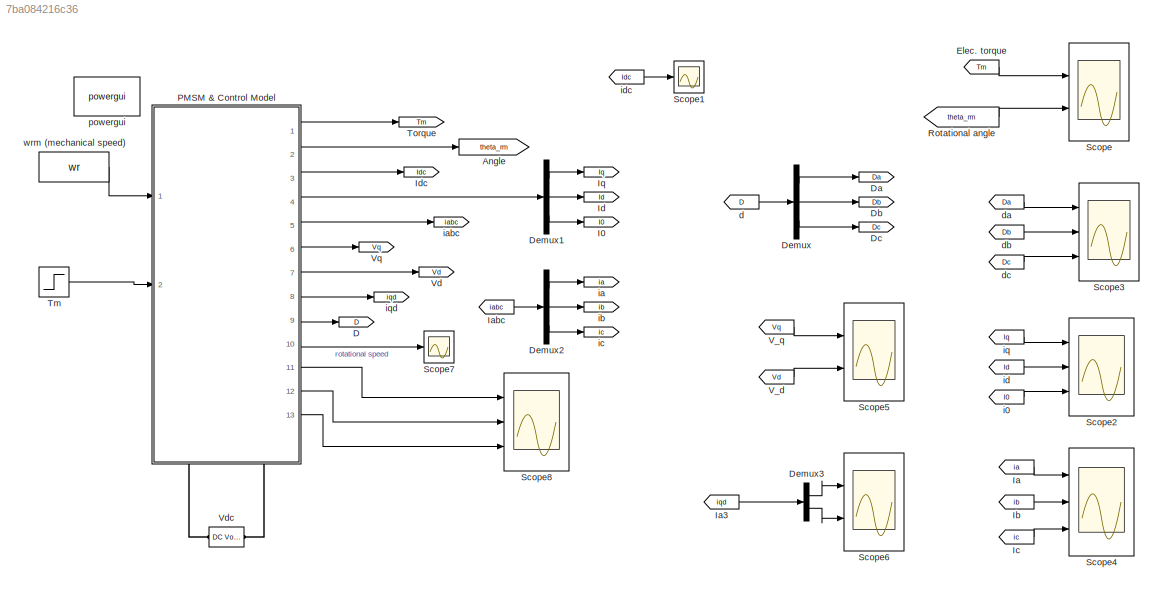
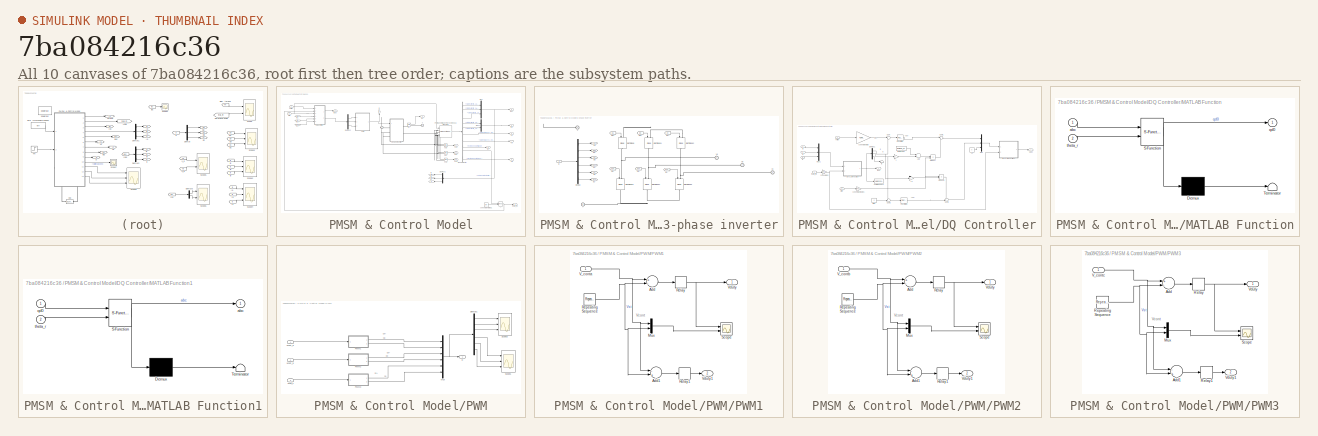
[diagram: thumbnail index - all 10 canvases of the model, root first then tree order]
MODEL slx_7ba084216c36
KIND model
CONFIG AbsTol = auto
CONFIG FixedStep = auto
CONFIG MaxStep = 1e-6
CONFIG MinStep = auto
CONFIG RelTol = 1e-6
CONFIG SampleTimeConstraint = Unconstrained
CONFIG Solver = ode45
CONFIG SolverMode = Auto
CONFIG SolverName = ode45
CONFIG StartTime = 0.0
CONFIG StopTime = 2
BLOCK [Goto] Angle
  GotoTag = theta_rm
BLOCK [Goto] D
  GotoTag = D
BLOCK [Goto] Da
  GotoTag = Da
BLOCK [Goto] Db
  GotoTag = Db
BLOCK [Goto] Dc
  GotoTag = Dc
BLOCK [Demux] Demux
  DisplayOption = bar
  Outputs = 3
  Ports = [1, 3]
BLOCK [Demux] Demux1
  DisplayOption = bar
  Outputs = 3
  Ports = [1, 3]
BLOCK [Demux] Demux2
  DisplayOption = bar
  Outputs = 3
  Ports = [1, 3]
BLOCK [Demux] Demux3
  DisplayOption = bar
  Outputs = 2
  Ports = [1, 2]
BLOCK [From] Elec. torque
  GotoTag = Tm
BLOCK [Goto] I0
  GotoTag = I0
BLOCK [From] Ia
  GotoTag = ia
BLOCK [From] Ia3
  GotoTag = iqd
BLOCK [From] Iabc
  GotoTag = iabc
BLOCK [From] Ib
  GotoTag = ib
BLOCK [From] Ic
  GotoTag = ic
BLOCK [Goto] Id
  GotoTag = Id
BLOCK [Goto] Idc
  GotoTag = Idc
BLOCK [Goto] Iq
  GotoTag = Iq
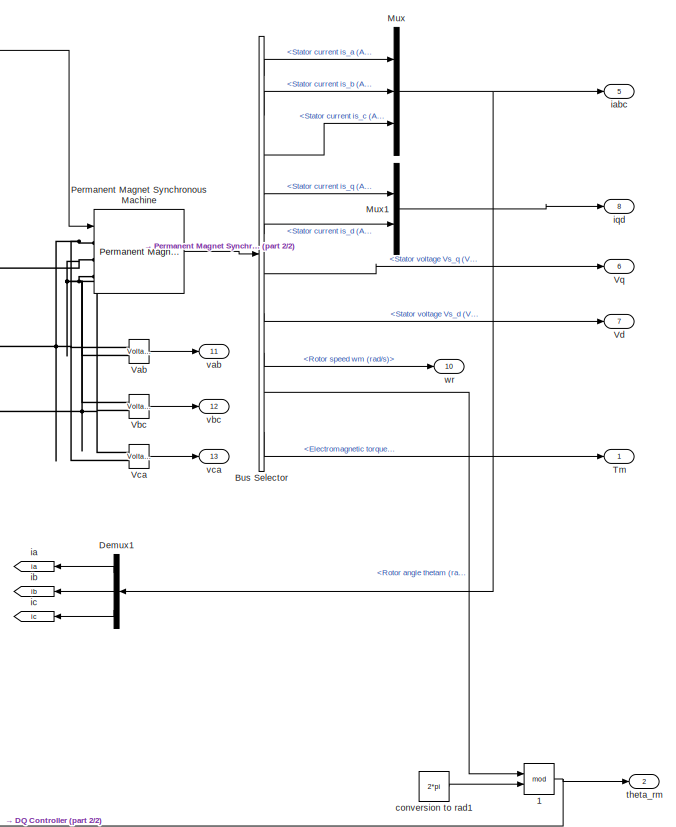
[diagram: PMSM & Control Model - part 1/2, right side, full height]
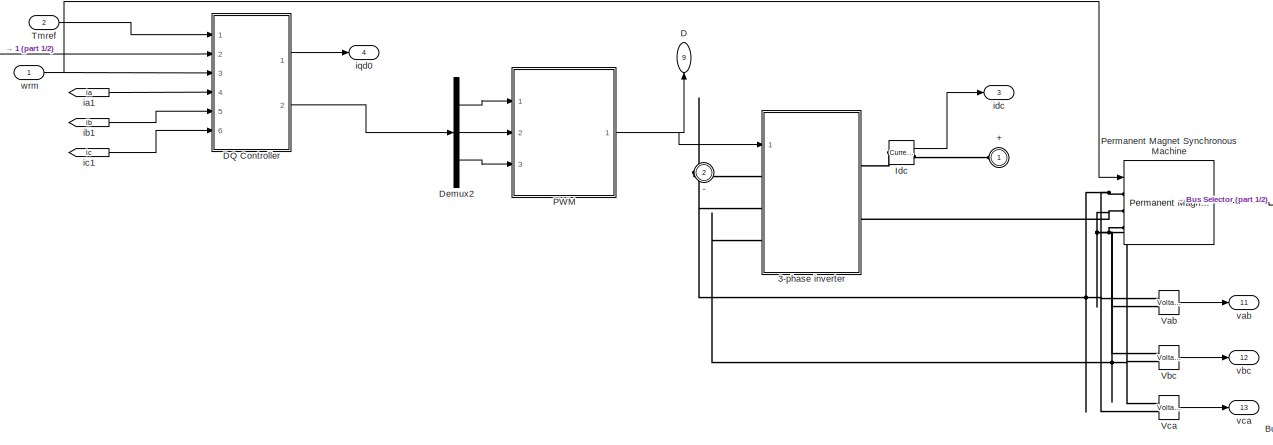
[diagram: PMSM & Control Model - part 2/2, full width, middle band]
BLOCK [SubSystem] PMSM & Control Model
  Ports = [2, 13, 0, 0, 0, 1, 1]
  RequestExecContextInheritance = off
  Variant = off
BLOCK [Math] PMSM & Control Model/  1
  Operator = mod
  Ports = [2, 1]
BLOCK [PMIOPort] PMSM & Control Model/+
  Port = 1
  Side = Left
BLOCK [PMIOPort] PMSM & Control Model/-
  Port = 2
  Side = Right
BLOCK [SubSystem] PMSM & Control Model/3-phase inverter
  Ports = [1, 0, 0, 0, 0, 3, 2]
  RequestExecContextInheritance = off
  Variant = off
BLOCK [PMIOPort] PMSM & Control Model/3-phase inverter/+
  Port = 1
  Side = Right
BLOCK [PMIOPort] PMSM & Control Model/3-phase inverter/-
  Port = 2
  Side = Left
BLOCK [Inport] PMSM & Control Model/3-phase inverter/D
  IconDisplay = Port number
BLOCK [From] PMSM & Control Model/3-phase inverter/Da+
  GotoTag = da
BLOCK [From] PMSM & Control Model/3-phase inverter/Da-
  GotoTag = dan
BLOCK [From] PMSM & Control Model/3-phase inverter/Db+
  GotoTag = db
BLOCK [From] PMSM & Control Model/3-phase inverter/Db-
  GotoTag = dbn
BLOCK [From] PMSM & Control Model/3-phase inverter/Dc+
  GotoTag = dc
BLOCK [From] PMSM & Control Model/3-phase inverter/Dc-
  GotoTag = dcn
BLOCK [Demux] PMSM & Control Model/3-phase inverter/Demux
  DisplayOption = bar
  Outputs = 6
  Ports = [1, 6]
BLOCK [Reference] PMSM & Control Model/3-phase inverter/IGBT//Diode  REF=powerlib/Power
Electronics/IGBT//Diode
  Ports = [1, 0, 0, 0, 0, 1, 1]
  SourceBlock = powerlib/Power\nElectronics/IGBT//Diode
  SourceType = IGBT/Diode
BLOCK [Reference] PMSM & Control Model/3-phase inverter/IGBT//Diode1  REF=powerlib/Power
Electronics/IGBT//Diode
  Ports = [1, 0, 0, 0, 0, 1, 1]
  SourceBlock = powerlib/Power\nElectronics/IGBT//Diode
  SourceType = IGBT/Diode
BLOCK [Reference] PMSM & Control Model/3-phase inverter/IGBT//Diode2  REF=powerlib/Power
Electronics/IGBT//Diode
  Ports = [1, 0, 0, 0, 0, 1, 1]
  SourceBlock = powerlib/Power\nElectronics/IGBT//Diode
  SourceType = IGBT/Diode
BLOCK [Reference] PMSM & Control Model/3-phase inverter/IGBT//Diode3  REF=powerlib/Power
Electronics/IGBT//Diode
  Ports = [1, 0, 0, 0, 0, 1, 1]
  SourceBlock = powerlib/Power\nElectronics/IGBT//Diode
  SourceType = IGBT/Diode
BLOCK [Reference] PMSM & Control Model/3-phase inverter/IGBT//Diode4  REF=powerlib/Power
Electronics/IGBT//Diode
  Ports = [1, 0, 0, 0, 0, 1, 1]
  SourceBlock = powerlib/Power\nElectronics/IGBT//Diode
  SourceType = IGBT/Diode
BLOCK [Reference] PMSM & Control Model/3-phase inverter/IGBT//Diode5  REF=powerlib/Power
Electronics/IGBT//Diode
  Ports = [1, 0, 0, 0, 0, 1, 1]
  SourceBlock = powerlib/Power\nElectronics/IGBT//Diode
  SourceType = IGBT/Diode
BLOCK [PMIOPort] PMSM & Control Model/3-phase inverter/Va
  Port = 3
  Side = Left
BLOCK [PMIOPort] PMSM & Control Model/3-phase inverter/Vb
  Port = 4
  Side = Right
BLOCK [PMIOPort] PMSM & Control Model/3-phase inverter/Vc
  Port = 5
  Side = Left
BLOCK [Goto] PMSM & Control Model/3-phase inverter/da
  GotoTag = da
BLOCK [Goto] PMSM & Control Model/3-phase inverter/da-
  GotoTag = dan
BLOCK [Goto] PMSM & Control Model/3-phase inverter/db
  GotoTag = db
BLOCK [Goto] PMSM & Control Model/3-phase inverter/db-
  GotoTag = dbn
BLOCK [Goto] PMSM & Control Model/3-phase inverter/dc
  GotoTag = dc
BLOCK [Goto] PMSM & Control Model/3-phase inverter/dc-
  GotoTag = dcn
BLOCK [BusSelector] PMSM & Control Model/Bus Selector
  OutputSignals = Stator current is_a (A),Stator current is_b (A),Stator current is_c (A),Stator current is_q (A),Stator current is_d (A),Stator voltage Vs_q (V),Stator voltage Vs_d (V),Rotor speed wm (rad/s),Rotor angle thetam (rad),Electromagnetic torque Te (N*m)
  Ports = [1, 10]
BLOCK [Outport] PMSM & Control Model/D
  IconDisplay = Port number
  Port = 9
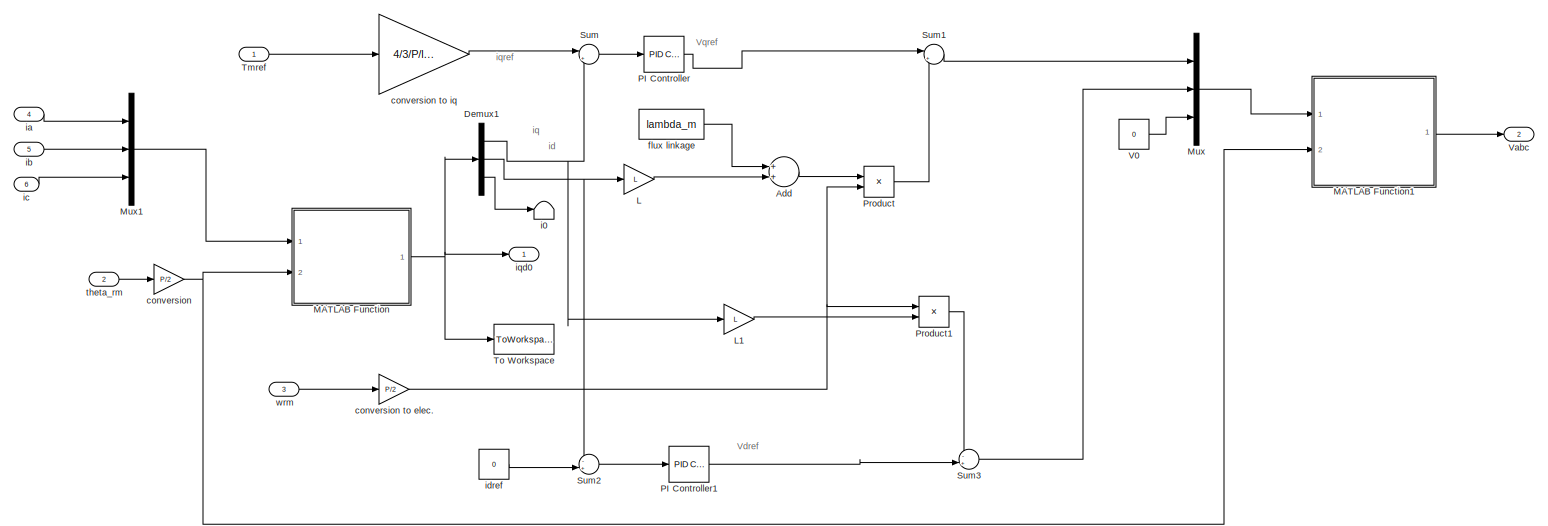
[diagram: PMSM & Control Model/DQ Controller - part 1/1, most of the canvas]
BLOCK [SubSystem] PMSM & Control Model/DQ Controller
  Ports = [6, 2]
  RequestExecContextInheritance = off
  Variant = off
BLOCK [Sum] PMSM & Control Model/DQ Controller/Add
  InputSameDT = off
  OutDataTypeStr = Inherit: Inherit via internal rule
  Ports = [2, 1]
  SaturateOnIntegerOverflow = off
BLOCK [Demux] PMSM & Control Model/DQ Controller/Demux1
  DisplayOption = bar
  Outputs = [1 1 1]
  Ports = [1, 3]
BLOCK [Gain] PMSM & Control Model/DQ Controller/L
  Gain = L
  OutDataTypeStr = Inherit: Inherit via internal rule
  ParamDataTypeStr = Inherit: Inherit via internal rule
  SaturateOnIntegerOverflow = off
BLOCK [Gain] PMSM & Control Model/DQ Controller/L1
  Gain = L
  OutDataTypeStr = Inherit: Inherit via internal rule
  ParamDataTypeStr = Inherit: Inherit via internal rule
  SaturateOnIntegerOverflow = off
BLOCK [SubSystem] PMSM & Control Model/DQ Controller/MATLAB Function
  ErrorFcn = Stateflow.Translate.translate
  PermitHierarchicalResolution = ExplicitOnly
  Ports = [2, 1]
  RequestExecContextInheritance = off
  SFBlockType = MATLAB Function
  TreatAsAtomicUnit = on
  Variant = off
BLOCK [Demux] PMSM & Control Model/DQ Controller/MATLAB Function/ Demux 
  Outputs = 1
  Ports = [1, 1]
BLOCK [S-Function] PMSM & Control Model/DQ Controller/MATLAB Function/ SFunction 
  EnableBusSupport = on
  FunctionName = sf_sfun
  PortCounts = [2 2]
  Ports = [2, 2]
  SFunctionDeploymentMode = off
  Tag = Stateflow S-Function pmsm_dynamic_simscape 2
BLOCK [Terminator] PMSM & Control Model/DQ Controller/MATLAB Function/ Terminator 
BLOCK [Inport] PMSM & Control Model/DQ Controller/MATLAB Function/abc
  IconDisplay = Port number
BLOCK [Outport] PMSM & Control Model/DQ Controller/MATLAB Function/qd0
  IconDisplay = Port number
BLOCK [Inport] PMSM & Control Model/DQ Controller/MATLAB Function/theta_r
  IconDisplay = Port number
  Port = 2
BLOCK [SubSystem] PMSM & Control Model/DQ Controller/MATLAB Function1
  ErrorFcn = Stateflow.Translate.translate
  PermitHierarchicalResolution = ExplicitOnly
  Ports = [2, 1]
  RequestExecContextInheritance = off
  SFBlockType = MATLAB Function
  TreatAsAtomicUnit = on
  Variant = off
BLOCK [Demux] PMSM & Control Model/DQ Controller/MATLAB Function1/ Demux 
  Outputs = 1
  Ports = [1, 1]
BLOCK [S-Function] PMSM & Control Model/DQ Controller/MATLAB Function1/ SFunction 
  EnableBusSupport = on
  FunctionName = sf_sfun
  PortCounts = [2 2]
  Ports = [2, 2]
  SFunctionDeploymentMode = off
  Tag = Stateflow S-Function pmsm_dynamic_simscape 1
BLOCK [Terminator] PMSM & Control Model/DQ Controller/MATLAB Function1/ Terminator 
BLOCK [Outport] PMSM & Control Model/DQ Controller/MATLAB Function1/abc
  IconDisplay = Port number
BLOCK [Inport] PMSM & Control Model/DQ Controller/MATLAB Function1/qd0
  IconDisplay = Port number
BLOCK [Inport] PMSM & Control Model/DQ Controller/MATLAB Function1/theta_r
  IconDisplay = Port number
  Port = 2
BLOCK [Mux] PMSM & Control Model/DQ Controller/Mux
  DisplayOption = bar
  Inputs = [1 1 1]
  Ports = [3, 1]
BLOCK [Mux] PMSM & Control Model/DQ Controller/Mux1
  DisplayOption = bar
  Inputs = [1 1 1]
  Ports = [3, 1]
BLOCK [Reference] PMSM & Control Model/DQ Controller/PI Controller  REF=simulink/Continuous/PID Controller
  Ports = [1, 1]
  SourceBlock = simulink/Continuous/PID Controller
  SourceType = PID 1dof
BLOCK [Reference] PMSM & Control Model/DQ Controller/PI Controller1  REF=simulink/Continuous/PID Controller
  Ports = [1, 1]
  SourceBlock = simulink/Continuous/PID Controller
  SourceType = PID 1dof
BLOCK [Product] PMSM & Control Model/DQ Controller/Product
  InputSameDT = off
  OutDataTypeStr = Inherit: Inherit via internal rule
  Ports = [2, 1]
  RndMeth = Floor
  SaturateOnIntegerOverflow = off
BLOCK [Product] PMSM & Control Model/DQ Controller/Product1
  InputSameDT = off
  OutDataTypeStr = Inherit: Inherit via internal rule
  Ports = [2, 1]
  RndMeth = Floor
  SaturateOnIntegerOverflow = off
BLOCK [Sum] PMSM & Control Model/DQ Controller/Sum
  IconShape = round
  InputSameDT = off
  Inputs = |+-
  OutDataTypeStr = Inherit: Inherit via internal rule
  Ports = [2, 1]
  SaturateOnIntegerOverflow = off
BLOCK [Sum] PMSM & Control Model/DQ Controller/Sum1
  IconShape = round
  InputSameDT = off
  Inputs = |++
  OutDataTypeStr = Inherit: Inherit via internal rule
  Ports = [2, 1]
  SaturateOnIntegerOverflow = off
BLOCK [Sum] PMSM & Control Model/DQ Controller/Sum2
  IconShape = round
  InputSameDT = off
  Inputs = -+|
  OutDataTypeStr = Inherit: Inherit via internal rule
  Ports = [2, 1]
  SaturateOnIntegerOverflow = off
BLOCK [Sum] PMSM & Control Model/DQ Controller/Sum3
  IconShape = round
  InputSameDT = off
  Inputs = -+|
  OutDataTypeStr = Inherit: Inherit via internal rule
  Ports = [2, 1]
  SaturateOnIntegerOverflow = off
BLOCK [Inport] PMSM & Control Model/DQ Controller/Tmref
  IconDisplay = Port number
BLOCK [ToWorkspace] PMSM & Control Model/DQ Controller/To Workspace
  FixptAsFi = on
  MaxDataPoints = inf
  Ports = [1]
  SampleTime = -1
  Save2DSignal = 3-D array (concatenate along third dimension)
  SaveFormat = Structure
  VariableName = simout
BLOCK [Constant] PMSM & Control Model/DQ Controller/V0
  Value = 0
BLOCK [Outport] PMSM & Control Model/DQ Controller/Vabc
  IconDisplay = Port number
  Port = 2
BLOCK [Gain] PMSM & Control Model/DQ Controller/conversion 
  Gain = P/2
  OutDataTypeStr = Inherit: Inherit via internal rule
  ParamDataTypeStr = Inherit: Inherit via internal rule
  SaturateOnIntegerOverflow = off
BLOCK [Gain] PMSM & Control Model/DQ Controller/conversion to elec.
  Gain = P/2
  OutDataTypeStr = Inherit: Inherit via internal rule
  ParamDataTypeStr = Inherit: Inherit via internal rule
  SaturateOnIntegerOverflow = off
BLOCK [Gain] PMSM & Control Model/DQ Controller/conversion to iq
  Gain = 4/3/P/lambda_m
  OutDataTypeStr = Inherit: Inherit via internal rule
  ParamDataTypeStr = Inherit: Inherit via internal rule
  SaturateOnIntegerOverflow = off
BLOCK [Constant] PMSM & Control Model/DQ Controller/flux linkage
  Value = lambda_m
BLOCK [Terminator] PMSM & Control Model/DQ Controller/i0
BLOCK [Inport] PMSM & Control Model/DQ Controller/ia
  IconDisplay = Port number
  Port = 4
BLOCK [Inport] PMSM & Control Model/DQ Controller/ib
  IconDisplay = Port number
  Port = 5
BLOCK [Inport] PMSM & Control Model/DQ Controller/ic
  IconDisplay = Port number
  Port = 6
BLOCK [Constant] PMSM & Control Model/DQ Controller/idref
  Value = 0
BLOCK [Outport] PMSM & Control Model/DQ Controller/iqd0
  IconDisplay = Port number
BLOCK [Inport] PMSM & Control Model/DQ Controller/theta_rm
  IconDisplay = Port number
  Port = 2
BLOCK [Inport] PMSM & Control Model/DQ Controller/wrm
  IconDisplay = Port number
  Port = 3
BLOCK [Demux] PMSM & Control Model/Demux1
  DisplayOption = bar
  Outputs = 3
  Ports = [1, 3]
BLOCK [Demux] PMSM & Control Model/Demux2
  DisplayOption = bar
  Outputs = 3
  Ports = [1, 3]
BLOCK [Reference] PMSM & Control Model/Idc  REF=powerlib/Measurements/Current Measurement
  Ports = [0, 1, 0, 0, 0, 1, 1]
  SourceBlock = powerlib/Measurements/Current Measurement
  SourceType = Current Measurement
  UserDataPersistent = on
BLOCK [Mux] PMSM & Control Model/Mux
  DisplayOption = bar
  Inputs = 3
  Ports = [3, 1]
BLOCK [Mux] PMSM & Control Model/Mux1
  DisplayOption = bar
  Inputs = 2
  Ports = [2, 1]
BLOCK [SubSystem] PMSM & Control Model/PWM
  Ports = [3, 1]
  RequestExecContextInheritance = off
  Variant = off
BLOCK [Outport] PMSM & Control Model/PWM/D
  IconDisplay = Port number
BLOCK [Demux] PMSM & Control Model/PWM/Demux1
  DisplayOption = bar
  Outputs = 6
  Ports = [1, 6]
BLOCK [Mux] PMSM & Control Model/PWM/Mux
  DisplayOption = bar
  Inputs = 6
  Ports = [6, 1]
BLOCK [SubSystem] PMSM & Control Model/PWM/PWM1
  Ports = [1, 2]
  RequestExecContextInheritance = off
  Variant = off
BLOCK [Sum] PMSM & Control Model/PWM/PWM1/Add
  InputSameDT = off
  Inputs = +-
  OutDataTypeStr = Inherit: Inherit via internal rule
  Ports = [2, 1]
  SaturateOnIntegerOverflow = off
BLOCK [Sum] PMSM & Control Model/PWM/PWM1/Add1
  InputSameDT = off
  Inputs = -+
  OutDataTypeStr = Inherit: Inherit via internal rule
  Ports = [2, 1]
  SaturateOnIntegerOverflow = off
BLOCK [Mux] PMSM & Control Model/PWM/PWM1/Mux
  DisplayOption = bar
  Inputs = 2
  Ports = [2, 1]
BLOCK [Relay] PMSM & Control Model/PWM/PWM1/Relay
  InputProcessing = Elements as channels (sample based)
  ZeroCross = off
BLOCK [Relay] PMSM & Control Model/PWM/PWM1/Relay1
  InputProcessing = Elements as channels (sample based)
  ZeroCross = off
BLOCK [Reference] PMSM & Control Model/PWM/PWM1/Repeating Sequence  REF=simulink/Sources/Repeating
Sequence
  Ports = [0, 1]
  SourceBlock = simulink/Sources/Repeating\nSequence
  SourceType = Repeating table
BLOCK [Scope] PMSM & Control Model/PWM/PWM1/Scope
  NumInputPorts = 2
  Ports = [2]
  ScopeSpecificationString = Simulink.scopes.TimeScopeBlockCfg('CurrentConfiguration', extmgr.ConfigurationSet(extmgr.Configuration('Core','General UI',true),extmgr.Configuration('Core','Source UI',true),extmgr.Configuration('Sources','WiredSimulink',true),extmgr.Configuration('Visuals','Time Domain',true,'SerializedDisplays',{struct('MinYLimReal','-0.25557','MaxYLimReal','1.06293','YLabelReal','','MinYLimMag','0.00000','MaxY...<+2031ch>  <repeated x3 — deduplicated; at blocks: Scope>
BLOCK [Inport] PMSM & Control Model/PWM/PWM1/V_conta
  IconDisplay = Port number
BLOCK [Outport] PMSM & Control Model/PWM/PWM1/Vduty
  IconDisplay = Port number
BLOCK [Outport] PMSM & Control Model/PWM/PWM1/Vduty1
  IconDisplay = Port number
  Port = 2
BLOCK [SubSystem] PMSM & Control Model/PWM/PWM2
  Ports = [1, 2]
  RequestExecContextInheritance = off
  Variant = off
BLOCK [Sum] PMSM & Control Model/PWM/PWM2/Add
  InputSameDT = off
  Inputs = +-
  OutDataTypeStr = Inherit: Inherit via internal rule
  Ports = [2, 1]
  SaturateOnIntegerOverflow = off
BLOCK [Sum] PMSM & Control Model/PWM/PWM2/Add1
  InputSameDT = off
  Inputs = -+
  OutDataTypeStr = Inherit: Inherit via internal rule
  Ports = [2, 1]
  SaturateOnIntegerOverflow = off
BLOCK [Mux] PMSM & Control Model/PWM/PWM2/Mux
  DisplayOption = bar
  Inputs = 2
  Ports = [2, 1]
BLOCK [Relay] PMSM & Control Model/PWM/PWM2/Relay
  InputProcessing = Elements as channels (sample based)
  ZeroCross = off
BLOCK [Relay] PMSM & Control Model/PWM/PWM2/Relay1
  InputProcessing = Elements as channels (sample based)
  ZeroCross = off
BLOCK [Reference] PMSM & Control Model/PWM/PWM2/Repeating Sequence  REF=simulink/Sources/Repeating
Sequence
  Ports = [0, 1]
  SourceBlock = simulink/Sources/Repeating\nSequence
  SourceType = Repeating table
BLOCK [Scope] PMSM & Control Model/PWM/PWM2/Scope
  NumInputPorts = 2
  Ports = [2]
BLOCK [Inport] PMSM & Control Model/PWM/PWM2/V_contb
  IconDisplay = Port number
BLOCK [Outport] PMSM & Control Model/PWM/PWM2/Vduty
  IconDisplay = Port number
BLOCK [Outport] PMSM & Control Model/PWM/PWM2/Vduty1
  IconDisplay = Port number
  Port = 2
BLOCK [SubSystem] PMSM & Control Model/PWM/PWM3
  Ports = [1, 2]
  RequestExecContextInheritance = off
  Variant = off
BLOCK [Sum] PMSM & Control Model/PWM/PWM3/Add
  InputSameDT = off
  Inputs = +-
  OutDataTypeStr = Inherit: Inherit via internal rule
  Ports = [2, 1]
  SaturateOnIntegerOverflow = off
BLOCK [Sum] PMSM & Control Model/PWM/PWM3/Add1
  InputSameDT = off
  Inputs = -+
  OutDataTypeStr = Inherit: Inherit via internal rule
  Ports = [2, 1]
  SaturateOnIntegerOverflow = off
BLOCK [Mux] PMSM & Control Model/PWM/PWM3/Mux
  DisplayOption = bar
  Inputs = 2
  Ports = [2, 1]
BLOCK [Relay] PMSM & Control Model/PWM/PWM3/Relay
  InputProcessing = Elements as channels (sample based)
  ZeroCross = off
BLOCK [Relay] PMSM & Control Model/PWM/PWM3/Relay1
  InputProcessing = Elements as channels (sample based)
  ZeroCross = off
BLOCK [Reference] PMSM & Control Model/PWM/PWM3/Repeating Sequence  REF=simulink/Sources/Repeating
Sequence
  Ports = [0, 1]
  SourceBlock = simulink/Sources/Repeating\nSequence
  SourceType = Repeating table
BLOCK [Scope] PMSM & Control Model/PWM/PWM3/Scope
  NumInputPorts = 2
  Ports = [2]
BLOCK [Inport] PMSM & Control Model/PWM/PWM3/V_contc
  IconDisplay = Port number
BLOCK [Outport] PMSM & Control Model/PWM/PWM3/Vduty
  IconDisplay = Port number
BLOCK [Outport] PMSM & Control Model/PWM/PWM3/Vduty1
  IconDisplay = Port number
  Port = 2
BLOCK [Scope] PMSM & Control Model/PWM/Scope1
  NumInputPorts = 3
  Ports = [3]
  ScopeSpecificationString = Simulink.scopes.TimeScopeBlockCfg('CurrentConfiguration', extmgr.ConfigurationSet(extmgr.Configuration('Core','General UI',true),extmgr.Configuration('Core','Source UI',true),extmgr.Configuration('Sources','WiredSimulink',true,'DataLoggingVariableName','ScopeData3','DataLoggingLimitDataPoints',true,'DataLoggingSaveFormat','Array','DataLoggingDecimation','1','DataLoggingDecimateData',true),extmgr.C...<+2890ch>
BLOCK [Scope] PMSM & Control Model/PWM/Scope3
  NumInputPorts = 3
  Ports = [3]
  ScopeSpecificationString = Simulink.scopes.TimeScopeBlockCfg('CurrentConfiguration', extmgr.ConfigurationSet(extmgr.Configuration('Core','General UI',true),extmgr.Configuration('Core','Source UI',true),extmgr.Configuration('Sources','WiredSimulink',true,'DataLoggingVariableName','ScopeData2','DataLoggingLimitDataPoints',true,'DataLoggingSaveFormat','Array','DataLoggingDecimation','1','DataLoggingDecimateData',true),extmgr.C...<+2902ch>
BLOCK [Inport] PMSM & Control Model/PWM/Vcon_c
  IconDisplay = Port number
  Port = 3
BLOCK [Inport] PMSM & Control Model/PWM/Vcont_a
  IconDisplay = Port number
BLOCK [Inport] PMSM & Control Model/PWM/Vcont_b
  IconDisplay = Port number
  Port = 2
BLOCK [Reference] PMSM & Control Model/Permanent Magnet Synchronous Machine  REF=powerlib/Machines/Permanent Magnet
Synchronous Machine
  Ports = [1, 1, 0, 0, 0, 3]
  SourceBlock = powerlib/Machines/Permanent Magnet\nSynchronous Machine
  SourceType = Permanent Magnet Synchronous Machine
BLOCK [Outport] PMSM & Control Model/Tm
  IconDisplay = Port number
BLOCK [Inport] PMSM & Control Model/Tmref
  IconDisplay = Port number
  Port = 2
BLOCK [Reference] PMSM & Control Model/Vab  REF=powerlib/Measurements/Voltage Measurement
  Ports = [0, 1, 0, 0, 0, 2]
  SourceBlock = powerlib/Measurements/Voltage Measurement
  SourceType = Voltage Measurement
  UserDataPersistent = on
BLOCK [Reference] PMSM & Control Model/Vbc  REF=powerlib/Measurements/Voltage Measurement
  Ports = [0, 1, 0, 0, 0, 2]
  SourceBlock = powerlib/Measurements/Voltage Measurement
  SourceType = Voltage Measurement
  UserDataPersistent = on
BLOCK [Reference] PMSM & Control Model/Vca  REF=powerlib/Measurements/Voltage Measurement
  Ports = [0, 1, 0, 0, 0, 2]
  SourceBlock = powerlib/Measurements/Voltage Measurement
  SourceType = Voltage Measurement
  UserDataPersistent = on
BLOCK [Outport] PMSM & Control Model/Vd
  IconDisplay = Port number
  Port = 7
BLOCK [Outport] PMSM & Control Model/Vq
  IconDisplay = Port number
  Port = 6
BLOCK [Constant] PMSM & Control Model/conversion to rad1
  Value = 2*pi
BLOCK [Goto] PMSM & Control Model/ia
  GotoTag = ia
BLOCK [From] PMSM & Control Model/ia1
  GotoTag = ia
BLOCK [Outport] PMSM & Control Model/iabc
  IconDisplay = Port number
  Port = 5
BLOCK [Goto] PMSM & Control Model/ib
  GotoTag = ib
BLOCK [From] PMSM & Control Model/ib1
  GotoTag = ib
BLOCK [Goto] PMSM & Control Model/ic
  GotoTag = ic
BLOCK [From] PMSM & Control Model/ic1
  GotoTag = ic
BLOCK [Outport] PMSM & Control Model/idc
  IconDisplay = Port number
  Port = 3
BLOCK [Outport] PMSM & Control Model/iqd
  IconDisplay = Port number
  Port = 8
BLOCK [Outport] PMSM & Control Model/iqd0
  IconDisplay = Port number
  Port = 4
BLOCK [Outport] PMSM & Control Model/theta_rm
  IconDisplay = Port number
  Port = 2
BLOCK [Outport] PMSM & Control Model/vab
  IconDisplay = Port number
  Port = 11
BLOCK [Outport] PMSM & Control Model/vbc
  IconDisplay = Port number
  Port = 12
BLOCK [Outport] PMSM & Control Model/vca
  IconDisplay = Port number
  Port = 13
BLOCK [Outport] PMSM & Control Model/wr
  IconDisplay = Port number
  Port = 10
BLOCK [Inport] PMSM & Control Model/wrm
  IconDisplay = Port number
BLOCK [From] Rotational angle
  GotoTag = theta_rm
BLOCK [Scope] Scope
  NumInputPorts = 2
  Ports = [2]
  ScopeSpecificationString = Simulink.scopes.TimeScopeBlockCfg('CurrentConfiguration', extmgr.ConfigurationSet(extmgr.Configuration('Core','General UI',true),extmgr.Configuration('Core','Source UI',true),extmgr.Configuration('Sources','WiredSimulink',true),extmgr.Configuration('Visuals','Time Domain',true,'SerializedDisplays',{struct('MinYLimReal','-48.85484','MaxYLimReal','353.92607','YLabelReal','','MinYLimMag','0.00000','M...<+2004ch>
BLOCK [Scope] Scope1
  Ports = [1]
  ScopeSpecificationString = Simulink.scopes.TimeScopeBlockCfg('CurrentConfiguration', extmgr.ConfigurationSet(extmgr.Configuration('Core','General UI',true),extmgr.Configuration('Core','Source UI',true),extmgr.Configuration('Sources','WiredSimulink',true,'DataLoggingVariableName','ScopeData1','DataLoggingSaveFormat','Array','DataLoggingDecimation','1','DataLoggingDecimateData',true),extmgr.Configuration('Visuals','Time Domai...<+1486ch>
BLOCK [Scope] Scope2
  NumInputPorts = 3
  Ports = [3]
  ScopeSpecificationString = Simulink.scopes.TimeScopeBlockCfg('CurrentConfiguration', extmgr.ConfigurationSet(extmgr.Configuration('Core','General UI',true),extmgr.Configuration('Core','Source UI',true),extmgr.Configuration('Sources','WiredSimulink',true,'DataLoggingVariableName','ScopeData2','DataLoggingSaveFormat','Array','DataLoggingDecimation','1','DataLoggingDecimateData',true),extmgr.Configuration('Visuals','Time Domai...<+2837ch>
BLOCK [Scope] Scope3
  NumInputPorts = 3
  Ports = [3]
  ScopeSpecificationString = Simulink.scopes.TimeScopeBlockCfg('CurrentConfiguration', extmgr.ConfigurationSet(extmgr.Configuration('Core','General UI',true),extmgr.Configuration('Core','Source UI',true),extmgr.Configuration('Sources','WiredSimulink',true,'DataLoggingVariableName','ScopeData3','DataLoggingSaveFormat','Array','DataLoggingDecimation','1','DataLoggingDecimateData',true),extmgr.Configuration('Visuals','Time Domai...<+2835ch>
BLOCK [Scope] Scope4
  NumInputPorts = 3
  Ports = [3]
  ScopeSpecificationString = Simulink.scopes.TimeScopeBlockCfg('CurrentConfiguration', extmgr.ConfigurationSet(extmgr.Configuration('Core','General UI',true),extmgr.Configuration('Core','Source UI',true),extmgr.Configuration('Sources','WiredSimulink',true,'DataLoggingVariableName','ScopeData4','DataLoggingSaveFormat','Array','DataLoggingDecimation','1','DataLoggingDecimateData',true),extmgr.Configuration('Visuals','Time Domai...<+2821ch>
BLOCK [Scope] Scope5
  NumInputPorts = 2
  Ports = [2]
  ScopeSpecificationString = Simulink.scopes.TimeScopeBlockCfg('CurrentConfiguration', extmgr.ConfigurationSet(extmgr.Configuration('Core','General UI',true),extmgr.Configuration('Core','Source UI',true),extmgr.Configuration('Sources','WiredSimulink',true,'DataLoggingVariableName','ScopeData5'),extmgr.Configuration('Visuals','Time Domain',true,'SerializedDisplays',{struct('MinYLimReal','-416.66714','MaxYLimReal','416.66728','...<+2117ch>
BLOCK [Scope] Scope6
  NumInputPorts = 2
  Ports = [2]
  ScopeSpecificationString = Simulink.scopes.TimeScopeBlockCfg('CurrentConfiguration', extmgr.ConfigurationSet(extmgr.Configuration('Core','General UI',true),extmgr.Configuration('Core','Source UI',true),extmgr.Configuration('Sources','WiredSimulink',true,'DataLoggingVariableName','ScopeData1','DataLoggingSaveFormat','Array','DataLoggingDecimation','1','DataLoggingDecimateData',true),extmgr.Configuration('Visuals','Time Domai...<+2083ch>
BLOCK [Scope] Scope7
  Ports = [1]
  ScopeSpecificationString = Simulink.scopes.TimeScopeBlockCfg('CurrentConfiguration', extmgr.ConfigurationSet(extmgr.Configuration('Core','General UI',true),extmgr.Configuration('Core','Source UI',true),extmgr.Configuration('Sources','WiredSimulink',true,'DataLoggingVariableName','ScopeData1'),extmgr.Configuration('Visuals','Time Domain',true,'SerializedDisplays',{struct('MinYLimReal','68.53982','MaxYLimReal','88.53982','YLa...<+1408ch>
BLOCK [Scope] Scope8
  NumInputPorts = 3
  Ports = [3]
  ScopeSpecificationString = Simulink.scopes.TimeScopeBlockCfg('CurrentConfiguration', extmgr.ConfigurationSet(extmgr.Configuration('Core','General UI',true),extmgr.Configuration('Core','Source UI',true),extmgr.Configuration('Sources','WiredSimulink',true,'DataLoggingVariableName','ScopeData1','DataLoggingSaveFormat','Array','DataLoggingDecimation','1','DataLoggingDecimateData',true),extmgr.Configuration('Visuals','Time Domai...<+2846ch>
BLOCK [Step] Tm
  After = Tmref
  SampleTime = 0
  Time = 0.4
BLOCK [Goto] Torque
  GotoTag = Tm
BLOCK [From] V_d
  GotoTag = Vd
BLOCK [From] V_q
  GotoTag = Vq
BLOCK [Goto] Vd
  GotoTag = Vd
BLOCK [Reference] Vdc  REF=powerlib/Electrical
Sources/DC Voltage Source
  Ports = [0, 0, 0, 0, 0, 1, 1]
  SourceBlock = powerlib/Electrical\nSources/DC Voltage Source
  SourceType = DC Voltage Source
BLOCK [Goto] Vq
  GotoTag = Vq
BLOCK [From] d
  GotoTag = D
BLOCK [From] da
  GotoTag = Da
BLOCK [From] db
  GotoTag = Db
BLOCK [From] dc
  GotoTag = Dc
BLOCK [From] i0
  GotoTag = I0
BLOCK [Goto] ia
  GotoTag = ia
BLOCK [Goto] iabc
  GotoTag = iabc
BLOCK [Goto] ib
  GotoTag = ib
BLOCK [Goto] ic
  GotoTag = ic
BLOCK [From] id
  GotoTag = Id
BLOCK [From] idc
  GotoTag = Idc
BLOCK [From] iq
  GotoTag = Iq
BLOCK [Goto] iqd
  GotoTag = iqd
BLOCK [Reference] powergui  REF=powerlib/powergui
  Ports = []
  Priority = 1
  SourceBlock = powerlib/powergui
  SourceType = PSB option menu block
  UserDataPersistent = on
BLOCK [Constant] wrm (mechanical speed)
  Value = wr
ANNOTATION PMSM & Control Model/DQ Controller: Vdref
ANNOTATION PMSM & Control Model/DQ Controller: Vqref
ANNOTATION PMSM & Control Model/DQ Controller: id
ANNOTATION PMSM & Control Model/DQ Controller: iq
ANNOTATION PMSM & Control Model/DQ Controller: iqref
ANNOTATION PMSM & Control Model/PWM: Da+
ANNOTATION PMSM & Control Model/PWM: Da-
ANNOTATION PMSM & Control Model/PWM: Db+
ANNOTATION PMSM & Control Model/PWM: Db-
ANNOTATION PMSM & Control Model/PWM: Dc+
ANNOTATION PMSM & Control Model/PWM: Dc-
ANNOTATION PMSM & Control Model/PWM/PWM1: Vcont
ANNOTATION PMSM & Control Model/PWM/PWM2: Vcont
ANNOTATION PMSM & Control Model/PWM/PWM3: Vcont
LINE Demux1:1 -> Iq:1
LINE Demux1:2 -> Id:1
LINE Demux1:3 -> I0:1
LINE Demux2:1 -> ia:1
LINE Demux2:2 -> ib:1
LINE Demux2:3 -> ic:1
LINE Demux3:1 -> Scope6:1
LINE Demux3:2 -> Scope6:2
LINE Demux:1 -> Da:1
LINE Demux:2 -> Db:1
LINE Demux:3 -> Dc:1
LINE Elec. torque:1 -> Scope:1
LINE Ia3:1 -> Demux3:1
LINE Ia:1 -> Scope4:1
LINE Iabc:1 -> Demux2:1
LINE Ib:1 -> Scope4:2
LINE Ic:1 -> Scope4:3
NET PMSM & Control Model/  1:1 -> PMSM & Control Model/DQ Controller:2, PMSM & Control Model/theta_rm:1
LINE PMSM & Control Model/3-phase inverter/D:1 -> PMSM & Control Model/3-phase inverter/Demux:1
LINE PMSM & Control Model/3-phase inverter/Da+:1 -> PMSM & Control Model/3-phase inverter/IGBT//Diode:1
LINE PMSM & Control Model/3-phase inverter/Da-:1 -> PMSM & Control Model/3-phase inverter/IGBT//Diode3:1
LINE PMSM & Control Model/3-phase inverter/Db+:1 -> PMSM & Control Model/3-phase inverter/IGBT//Diode1:1
LINE PMSM & Control Model/3-phase inverter/Db-:1 -> PMSM & Control Model/3-phase inverter/IGBT//Diode4:1
LINE PMSM & Control Model/3-phase inverter/Dc+:1 -> PMSM & Control Model/3-phase inverter/IGBT//Diode2:1
LINE PMSM & Control Model/3-phase inverter/Dc-:1 -> PMSM & Control Model/3-phase inverter/IGBT//Diode5:1
LINE PMSM & Control Model/3-phase inverter/Demux:1 -> PMSM & Control Model/3-phase inverter/da:1
LINE PMSM & Control Model/3-phase inverter/Demux:2 -> PMSM & Control Model/3-phase inverter/da-:1
LINE PMSM & Control Model/3-phase inverter/Demux:3 -> PMSM & Control Model/3-phase inverter/db:1
LINE PMSM & Control Model/3-phase inverter/Demux:4 -> PMSM & Control Model/3-phase inverter/db-:1
LINE PMSM & Control Model/3-phase inverter/Demux:5 -> PMSM & Control Model/3-phase inverter/dc:1
LINE PMSM & Control Model/3-phase inverter/Demux:6 -> PMSM & Control Model/3-phase inverter/dc-:1
LINE PMSM & Control Model/Bus Selector:1 -> PMSM & Control Model/Mux:1
LINE PMSM & Control Model/Bus Selector:10 -> PMSM & Control Model/Tm:1
LINE PMSM & Control Model/Bus Selector:2 -> PMSM & Control Model/Mux:2
LINE PMSM & Control Model/Bus Selector:3 -> PMSM & Control Model/Mux:3
LINE PMSM & Control Model/Bus Selector:4 -> PMSM & Control Model/Mux1:1
LINE PMSM & Control Model/Bus Selector:5 -> PMSM & Control Model/Mux1:2
LINE PMSM & Control Model/Bus Selector:6 -> PMSM & Control Model/Vq:1
LINE PMSM & Control Model/Bus Selector:7 -> PMSM & Control Model/Vd:1
LINE PMSM & Control Model/Bus Selector:8 -> PMSM & Control Model/wr:1
LINE PMSM & Control Model/Bus Selector:9 -> PMSM & Control Model/  1:1
LINE PMSM & Control Model/DQ Controller/Add:1 -> PMSM & Control Model/DQ Controller/Product:1
NET PMSM & Control Model/DQ Controller/Demux1:1 -> PMSM & Control Model/DQ Controller/L1:1, PMSM & Control Model/DQ Controller/Sum:2
NET PMSM & Control Model/DQ Controller/Demux1:2 -> PMSM & Control Model/DQ Controller/L:1, PMSM & Control Model/DQ Controller/Sum2:1
LINE PMSM & Control Model/DQ Controller/Demux1:3 -> PMSM & Control Model/DQ Controller/i0:1
LINE PMSM & Control Model/DQ Controller/L1:1 -> PMSM & Control Model/DQ Controller/Product1:2
LINE PMSM & Control Model/DQ Controller/L:1 -> PMSM & Control Model/DQ Controller/Add:2
LINE PMSM & Control Model/DQ Controller/MATLAB Function1:1 -> PMSM & Control Model/DQ Controller/Vabc:1
NET PMSM & Control Model/DQ Controller/MATLAB Function:1 -> PMSM & Control Model/DQ Controller/Demux1:1, PMSM & Control Model/DQ Controller/To Workspace:1, PMSM & Control Model/DQ Controller/iqd0:1
LINE PMSM & Control Model/DQ Controller/Mux1:1 -> PMSM & Control Model/DQ Controller/MATLAB Function:1
LINE PMSM & Control Model/DQ Controller/Mux:1 -> PMSM & Control Model/DQ Controller/MATLAB Function1:1
LINE PMSM & Control Model/DQ Controller/PI Controller1:1 -> PMSM & Control Model/DQ Controller/Sum3:2
LINE PMSM & Control Model/DQ Controller/PI Controller:1 -> PMSM & Control Model/DQ Controller/Sum1:1
LINE PMSM & Control Model/DQ Controller/Product1:1 -> PMSM & Control Model/DQ Controller/Sum3:1
LINE PMSM & Control Model/DQ Controller/Product:1 -> PMSM & Control Model/DQ Controller/Sum1:2
LINE PMSM & Control Model/DQ Controller/Sum1:1 -> PMSM & Control Model/DQ Controller/Mux:1
LINE PMSM & Control Model/DQ Controller/Sum2:1 -> PMSM & Control Model/DQ Controller/PI Controller1:1
LINE PMSM & Control Model/DQ Controller/Sum3:1 -> PMSM & Control Model/DQ Controller/Mux:2
LINE PMSM & Control Model/DQ Controller/Sum:1 -> PMSM & Control Model/DQ Controller/PI Controller:1
LINE PMSM & Control Model/DQ Controller/Tmref:1 -> PMSM & Control Model/DQ Controller/conversion to iq:1
LINE PMSM & Control Model/DQ Controller/V0:1 -> PMSM & Control Model/DQ Controller/Mux:3
NET PMSM & Control Model/DQ Controller/conversion :1 -> PMSM & Control Model/DQ Controller/MATLAB Function1:2, PMSM & Control Model/DQ Controller/MATLAB Function:2
NET PMSM & Control Model/DQ Controller/conversion to elec.:1 -> PMSM & Control Model/DQ Controller/Product1:1, PMSM & Control Model/DQ Controller/Product:2
LINE PMSM & Control Model/DQ Controller/conversion to iq:1 -> PMSM & Control Model/DQ Controller/Sum:1
LINE PMSM & Control Model/DQ Controller/flux linkage:1 -> PMSM & Control Model/DQ Controller/Add:1
LINE PMSM & Control Model/DQ Controller/ia:1 -> PMSM & Control Model/DQ Controller/Mux1:1
LINE PMSM & Control Model/DQ Controller/ib:1 -> PMSM & Control Model/DQ Controller/Mux1:2
LINE PMSM & Control Model/DQ Controller/ic:1 -> PMSM & Control Model/DQ Controller/Mux1:3
LINE PMSM & Control Model/DQ Controller/idref:1 -> PMSM & Control Model/DQ Controller/Sum2:2
LINE PMSM & Control Model/DQ Controller/theta_rm:1 -> PMSM & Control Model/DQ Controller/conversion :1
LINE PMSM & Control Model/DQ Controller/wrm:1 -> PMSM & Control Model/DQ Controller/conversion to elec.:1
LINE PMSM & Control Model/DQ Controller:1 -> PMSM & Control Model/iqd0:1
LINE PMSM & Control Model/DQ Controller:2 -> PMSM & Control Model/Demux2:1
LINE PMSM & Control Model/Demux1:1 -> PMSM & Control Model/ia:1
LINE PMSM & Control Model/Demux1:2 -> PMSM & Control Model/ib:1
LINE PMSM & Control Model/Demux1:3 -> PMSM & Control Model/ic:1
LINE PMSM & Control Model/Demux2:1 -> PMSM & Control Model/PWM:1
LINE PMSM & Control Model/Demux2:2 -> PMSM & Control Model/PWM:2
LINE PMSM & Control Model/Demux2:3 -> PMSM & Control Model/PWM:3
LINE PMSM & Control Model/Idc:1 -> PMSM & Control Model/idc:1
LINE PMSM & Control Model/Mux1:1 -> PMSM & Control Model/iqd:1
NET PMSM & Control Model/Mux:1 -> PMSM & Control Model/Demux1:1, PMSM & Control Model/iabc:1
LINE PMSM & Control Model/PWM/Demux1:1 -> PMSM & Control Model/PWM/Scope3:1
LINE PMSM & Control Model/PWM/Demux1:2 -> PMSM & Control Model/PWM/Scope3:2
LINE PMSM & Control Model/PWM/Demux1:3 -> PMSM & Control Model/PWM/Scope3:3
LINE PMSM & Control Model/PWM/Demux1:4 -> PMSM & Control Model/PWM/Scope1:1
LINE PMSM & Control Model/PWM/Demux1:5 -> PMSM & Control Model/PWM/Scope1:2
LINE PMSM & Control Model/PWM/Demux1:6 -> PMSM & Control Model/PWM/Scope1:3
NET PMSM & Control Model/PWM/Mux:1 -> PMSM & Control Model/PWM/D:1, PMSM & Control Model/PWM/Demux1:1
LINE PMSM & Control Model/PWM/PWM1/Add1:1 -> PMSM & Control Model/PWM/PWM1/Relay1:1
LINE PMSM & Control Model/PWM/PWM1/Add:1 -> PMSM & Control Model/PWM/PWM1/Relay:1
LINE PMSM & Control Model/PWM/PWM1/Mux:1 -> PMSM & Control Model/PWM/PWM1/Scope:2
LINE PMSM & Control Model/PWM/PWM1/Relay1:1 -> PMSM & Control Model/PWM/PWM1/Vduty1:1
NET PMSM & Control Model/PWM/PWM1/Relay:1 -> PMSM & Control Model/PWM/PWM1/Scope:1, PMSM & Control Model/PWM/PWM1/Vduty:1
NET PMSM & Control Model/PWM/PWM1/Repeating Sequence:1 -> PMSM & Control Model/PWM/PWM1/Add1:2, PMSM & Control Model/PWM/PWM1/Add:2, PMSM & Control Model/PWM/PWM1/Mux:2
NET PMSM & Control Model/PWM/PWM1/V_conta:1 -> PMSM & Control Model/PWM/PWM1/Add1:1, PMSM & Control Model/PWM/PWM1/Add:1, PMSM & Control Model/PWM/PWM1/Mux:1
LINE PMSM & Control Model/PWM/PWM1:1 -> PMSM & Control Model/PWM/Mux:1
LINE PMSM & Control Model/PWM/PWM1:2 -> PMSM & Control Model/PWM/Mux:2
LINE PMSM & Control Model/PWM/PWM2/Add1:1 -> PMSM & Control Model/PWM/PWM2/Relay1:1
LINE PMSM & Control Model/PWM/PWM2/Add:1 -> PMSM & Control Model/PWM/PWM2/Relay:1
LINE PMSM & Control Model/PWM/PWM2/Mux:1 -> PMSM & Control Model/PWM/PWM2/Scope:2
LINE PMSM & Control Model/PWM/PWM2/Relay1:1 -> PMSM & Control Model/PWM/PWM2/Vduty1:1
NET PMSM & Control Model/PWM/PWM2/Relay:1 -> PMSM & Control Model/PWM/PWM2/Scope:1, PMSM & Control Model/PWM/PWM2/Vduty:1
NET PMSM & Control Model/PWM/PWM2/Repeating Sequence:1 -> PMSM & Control Model/PWM/PWM2/Add1:2, PMSM & Control Model/PWM/PWM2/Add:2, PMSM & Control Model/PWM/PWM2/Mux:2
NET PMSM & Control Model/PWM/PWM2/V_contb:1 -> PMSM & Control Model/PWM/PWM2/Add1:1, PMSM & Control Model/PWM/PWM2/Add:1, PMSM & Control Model/PWM/PWM2/Mux:1
LINE PMSM & Control Model/PWM/PWM2:1 -> PMSM & Control Model/PWM/Mux:3
LINE PMSM & Control Model/PWM/PWM2:2 -> PMSM & Control Model/PWM/Mux:4
LINE PMSM & Control Model/PWM/PWM3/Add1:1 -> PMSM & Control Model/PWM/PWM3/Relay1:1
LINE PMSM & Control Model/PWM/PWM3/Add:1 -> PMSM & Control Model/PWM/PWM3/Relay:1
LINE PMSM & Control Model/PWM/PWM3/Mux:1 -> PMSM & Control Model/PWM/PWM3/Scope:2
LINE PMSM & Control Model/PWM/PWM3/Relay1:1 -> PMSM & Control Model/PWM/PWM3/Vduty1:1
NET PMSM & Control Model/PWM/PWM3/Relay:1 -> PMSM & Control Model/PWM/PWM3/Scope:1, PMSM & Control Model/PWM/PWM3/Vduty:1
NET PMSM & Control Model/PWM/PWM3/Repeating Sequence:1 -> PMSM & Control Model/PWM/PWM3/Add1:2, PMSM & Control Model/PWM/PWM3/Add:2, PMSM & Control Model/PWM/PWM3/Mux:2
NET PMSM & Control Model/PWM/PWM3/V_contc:1 -> PMSM & Control Model/PWM/PWM3/Add1:1, PMSM & Control Model/PWM/PWM3/Add:1, PMSM & Control Model/PWM/PWM3/Mux:1
LINE PMSM & Control Model/PWM/PWM3:1 -> PMSM & Control Model/PWM/Mux:5
LINE PMSM & Control Model/PWM/PWM3:2 -> PMSM & Control Model/PWM/Mux:6
LINE PMSM & Control Model/PWM/Vcon_c:1 -> PMSM & Control Model/PWM/PWM3:1
LINE PMSM & Control Model/PWM/Vcont_a:1 -> PMSM & Control Model/PWM/PWM1:1
LINE PMSM & Control Model/PWM/Vcont_b:1 -> PMSM & Control Model/PWM/PWM2:1
NET PMSM & Control Model/PWM:1 -> PMSM & Control Model/3-phase inverter:1, PMSM & Control Model/D:1
LINE PMSM & Control Model/Permanent Magnet Synchronous Machine:1 -> PMSM & Control Model/Bus Selector:1
LINE PMSM & Control Model/Tmref:1 -> PMSM & Control Model/DQ Controller:1
LINE PMSM & Control Model/Vab:1 -> PMSM & Control Model/vab:1
LINE PMSM & Control Model/Vbc:1 -> PMSM & Control Model/vbc:1
LINE PMSM & Control Model/Vca:1 -> PMSM & Control Model/vca:1
LINE PMSM & Control Model/conversion to rad1:1 -> PMSM & Control Model/  1:2
LINE PMSM & Control Model/ia1:1 -> PMSM & Control Model/DQ Controller:4
LINE PMSM & Control Model/ib1:1 -> PMSM & Control Model/DQ Controller:5
LINE PMSM & Control Model/ic1:1 -> PMSM & Control Model/DQ Controller:6
NET PMSM & Control Model/wrm:1 -> PMSM & Control Model/DQ Controller:3, PMSM & Control Model/Permanent Magnet Synchronous Machine:1
LINE PMSM & Control Model:1 -> Torque:1
LINE PMSM & Control Model:10 -> Scope7:1
LINE PMSM & Control Model:11 -> Scope8:1
LINE PMSM & Control Model:12 -> Scope8:2
LINE PMSM & Control Model:13 -> Scope8:3
LINE PMSM & Control Model:2 -> Angle:1
LINE PMSM & Control Model:3 -> Idc:1
LINE PMSM & Control Model:4 -> Demux1:1
LINE PMSM & Control Model:5 -> iabc:1
LINE PMSM & Control Model:6 -> Vq:1
LINE PMSM & Control Model:7 -> Vd:1
LINE PMSM & Control Model:8 -> iqd:1
LINE PMSM & Control Model:9 -> D:1
LINE Rotational angle:1 -> Scope:2
LINE Tm:1 -> PMSM & Control Model:2
LINE V_d:1 -> Scope5:2
LINE V_q:1 -> Scope5:1
LINE d:1 -> Demux:1
LINE da:1 -> Scope3:1
LINE db:1 -> Scope3:2
LINE dc:1 -> Scope3:3
LINE i0:1 -> Scope2:3
LINE id:1 -> Scope2:2
LINE idc:1 -> Scope1:1
LINE iq:1 -> Scope2:1
LINE wrm (mechanical speed):1 -> PMSM & Control Model:1
PLINE PMSM & Control Model/+:RConn1 -- PMSM & Control Model/Idc:RConn1
PLINE PMSM & Control Model/-:RConn1 -- PMSM & Control Model/3-phase inverter:LConn1
PNET net1: PMSM & Control Model/3-phase inverter/+:RConn1 -- PMSM & Control Model/3-phase inverter/IGBT//Diode1:LConn1 -- PMSM & Control Model/3-phase inverter/IGBT//Diode2:LConn1 -- PMSM & Control Model/3-phase inverter/IGBT//Diode:LConn1
PNET net2: PMSM & Control Model/3-phase inverter/-:RConn1 -- PMSM & Control Model/3-phase inverter/IGBT//Diode3:RConn1 -- PMSM & Control Model/3-phase inverter/IGBT//Diode4:RConn1 -- PMSM & Control Model/3-phase inverter/IGBT//Diode5:RConn1
PNET net3: PMSM & Control Model/3-phase inverter/IGBT//Diode1:RConn1 -- PMSM & Control Model/3-phase inverter/IGBT//Diode4:LConn1 -- PMSM & Control Model/3-phase inverter/Vb:RConn1
PNET net4: PMSM & Control Model/3-phase inverter/IGBT//Diode2:RConn1 -- PMSM & Control Model/3-phase inverter/IGBT//Diode5:LConn1 -- PMSM & Control Model/3-phase inverter/Vc:RConn1
PNET net5: PMSM & Control Model/3-phase inverter/IGBT//Diode3:LConn1 -- PMSM & Control Model/3-phase inverter/IGBT//Diode:RConn1 -- PMSM & Control Model/3-phase inverter/Va:RConn1
PNET net6: PMSM & Control Model/3-phase inverter:LConn2 -- PMSM & Control Model/Permanent Magnet Synchronous Machine:LConn1 -- PMSM & Control Model/Vab:LConn1 -- PMSM & Control Model/Vca:LConn2
PNET net7: PMSM & Control Model/3-phase inverter:LConn3 -- PMSM & Control Model/Permanent Magnet Synchronous Machine:LConn3 -- PMSM & Control Model/Vbc:LConn2 -- PMSM & Control Model/Vca:LConn1
PLINE PMSM & Control Model/3-phase inverter:RConn1 -- PMSM & Control Model/Idc:LConn1
PNET net8: PMSM & Control Model/3-phase inverter:RConn2 -- PMSM & Control Model/Permanent Magnet Synchronous Machine:LConn2 -- PMSM & Control Model/Vab:LConn2 -- PMSM & Control Model/Vbc:LConn1
PLINE PMSM & Control Model:LConn1 -- Vdc:RConn1
PLINE PMSM & Control Model:RConn1 -- Vdc:LConn1
note: NET lines group one-source signal fan-out (src -> all destinations, sorted); 1:1 wires keep LINE; PNET lines group multi-terminal physical nets as a canonical sorted terminal list (undirected conserving connections); 2-terminal nets keep the pairwise PLINE form
CHART PMSM & Control Model/DQ Controller/MATLAB Function1 states=1 transitions=1
  STATE_LABEL 'eML_blk_kernel()'
  STATE_LABEL 'SCRIPT:\nfunction abc = Inverse_DQTransform(qd0, theta_r)\n%#codegen\n\nKr = 2/3*[  cos(theta_r)      cos(theta_r-2*pi/3)     cos(theta_r + 2*pi/3);\n            sin(theta_r)      sin(theta_r-2*pi/3)     sin(theta_r + 2*pi/3);\n            1/2               1/2                     1/2];\n  \nabc = Kr\\qd0;\n'
CHART PMSM & Control Model/DQ Controller/MATLAB Function states=1 transitions=1
  STATE_LABEL 'eML_blk_kernel()'
  STATE_LABEL 'SCRIPT:\nfunction qd0 = DQTransform(abc, theta_r)\n%#codegen\n\nKr = 2/3*[  cos(theta_r)      cos(theta_r-2*pi/3)     cos(theta_r + 2*pi/3);\n            sin(theta_r)      sin(theta_r-2*pi/3)     sin(theta_r + 2*pi/3);\n            1/2               1/2                     1/2];\n  \nqd0 = Kr*abc;'
